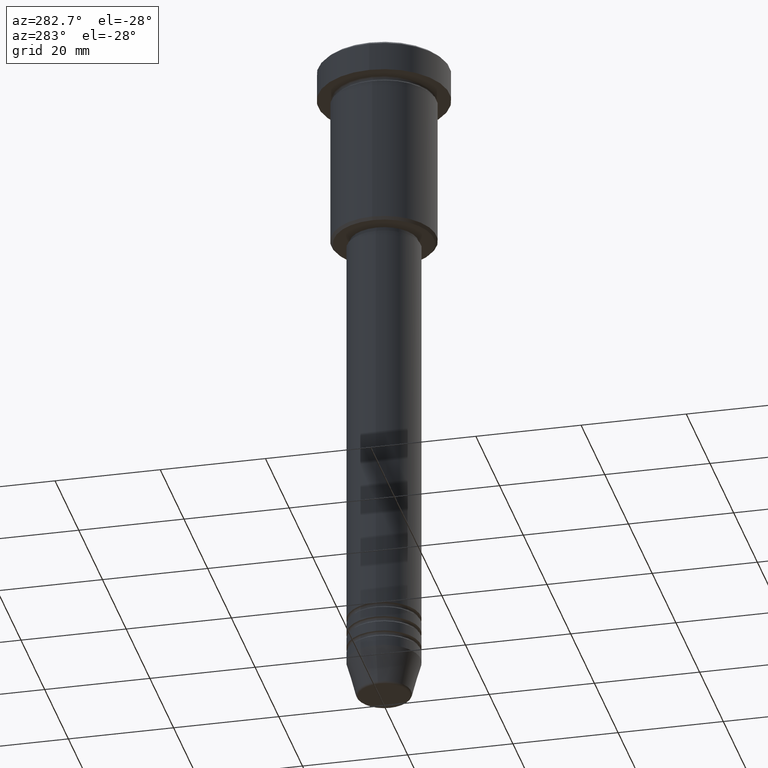
[diagram: clean part render]
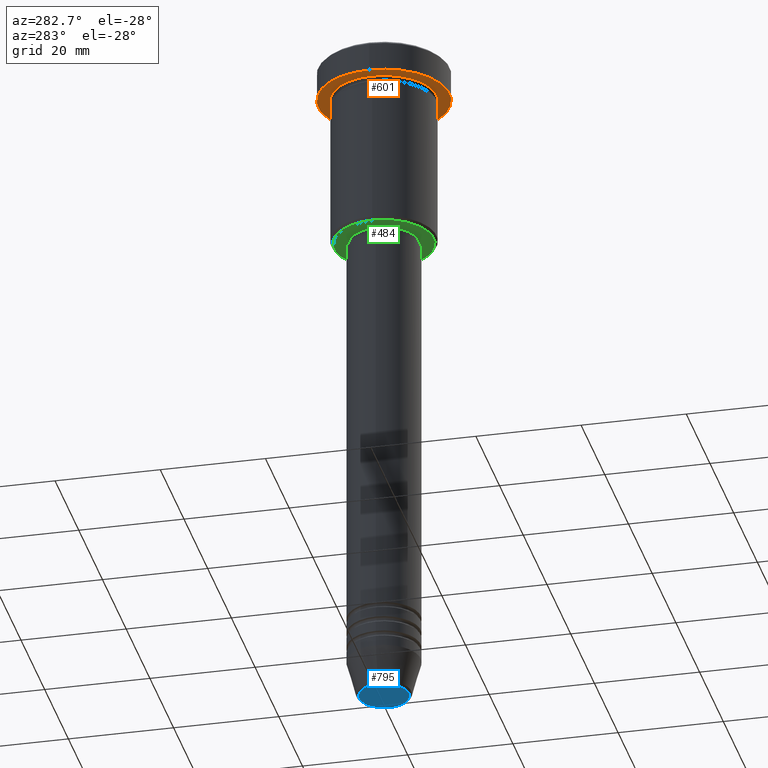
[diagram: same view with three faces highlighted in distinct colors, each labeled with its STEP entity id]
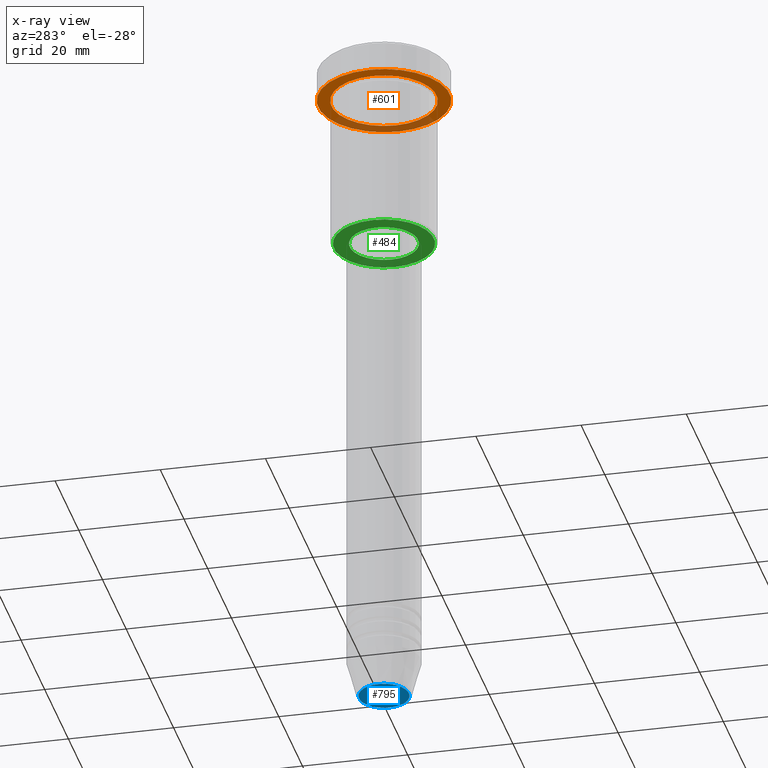
[diagram: x-ray of the same camera — body ghosted, the three highlighted faces saturated]
A machine part, auxiliary view with three faces highlighted in distinct colors.
The next image is the same camera in x-ray (body ghosted, the three faces saturated) — at least one of them is partly hidden behind the body in this view.
Their STEP definitions:

[orange] entity #601 — the highlighted planar face has unit normal (0, 0, -1).
#3 = CIRCLE ( 'NONE', #678, 12.50000000000000000 ) ;
#10 = CARTESIAN_POINT ( 'NONE',  ( 0.000000000000000000, 0.000000000000000000, -5.999999999999996447 ) ) ;
#13 = EDGE_LOOP ( 'NONE', ( #449, #93 ) ) ;
#35 = ORIENTED_EDGE ( 'NONE', *, *, #201, .T. ) ;
#53 = DIRECTION ( 'NONE',  ( 1.000000000000000000, 0.000000000000000000, 0.000000000000000000 ) ) ;
#66 = CARTESIAN_POINT ( 'NONE',  ( 0.000000000000000000, 0.000000000000000000, -5.999999999999996447 ) ) ;
#82 = EDGE_CURVE ( 'NONE', #419, #126, #373, .T. ) ;
#93 = ORIENTED_EDGE ( 'NONE', *, *, #937, .F. ) ;
#107 = DIRECTION ( 'NONE',  ( -1.000000000000000000, 0.000000000000000000, 0.000000000000000000 ) ) ;
#126 = VERTEX_POINT ( 'NONE', #240 ) ;
#140 = VERTEX_POINT ( 'NONE', #833 ) ;
#151 = CARTESIAN_POINT ( 'NONE',  ( 0.000000000000000000, 12.50000000000000000, -5.999999999999996447 ) ) ;
#155 = CIRCLE ( 'NONE', #728, 10.00000000000000000 ) ;
#180 = CARTESIAN_POINT ( 'NONE',  ( 0.000000000000000000, 0.000000000000000000, -5.999999999999996447 ) ) ;
#201 = EDGE_CURVE ( 'NONE', #140, #788, #505, .T. ) ;
#240 = CARTESIAN_POINT ( 'NONE',  ( -12.50000000000000000, 1.530808498934191521E-15, -5.999999999999996447 ) ) ;
#311 = AXIS2_PLACEMENT_3D ( 'NONE', #10, #662, #107 ) ;
#373 = CIRCLE ( 'NONE', #527, 12.50000000000000000 ) ;
#419 = VERTEX_POINT ( 'NONE', #1027 ) ;
#438 = DIRECTION ( 'NONE',  ( 1.000000000000000000, 0.000000000000000000, 0.000000000000000000 ) ) ;
#449 = ORIENTED_EDGE ( 'NONE', *, *, #82, .F. ) ;
#458 = AXIS2_PLACEMENT_3D ( 'NONE', #151, #519, #1171 ) ;
#483 = EDGE_LOOP ( 'NONE', ( #35, #696 ) ) ;
#505 = CIRCLE ( 'NONE', #311, 10.00000000000000000 ) ;
#519 = DIRECTION ( 'NONE',  ( 0.000000000000000000, 0.000000000000000000, -1.000000000000000000 ) ) ;
#527 = AXIS2_PLACEMENT_3D ( 'NONE', #902, #897, #438 ) ;
#601 = ADVANCED_FACE ( 'NONE', ( #1157, #896 ), #906, .T. ) ;
#662 = DIRECTION ( 'NONE',  ( -0.000000000000000000, -0.000000000000000000, 1.000000000000000000 ) ) ;
#678 = AXIS2_PLACEMENT_3D ( 'NONE', #66, #705, #53 ) ;
#696 = ORIENTED_EDGE ( 'NONE', *, *, #1149, .T. ) ;
#705 = DIRECTION ( 'NONE',  ( -0.000000000000000000, -0.000000000000000000, 1.000000000000000000 ) ) ;
#728 = AXIS2_PLACEMENT_3D ( 'NONE', #180, #995, #923 ) ;
#788 = VERTEX_POINT ( 'NONE', #1121 ) ;
#833 = CARTESIAN_POINT ( 'NONE',  ( -10.00000000000000000, 0.000000000000000000, -5.999999999999996447 ) ) ;
#896 = FACE_OUTER_BOUND ( 'NONE', #13, .T. ) ;
#897 = DIRECTION ( 'NONE',  ( -0.000000000000000000, -0.000000000000000000, 1.000000000000000000 ) ) ;
#902 = CARTESIAN_POINT ( 'NONE',  ( 0.000000000000000000, 0.000000000000000000, -5.999999999999996447 ) ) ;
#906 = PLANE ( 'NONE',  #458 ) ;
#923 = DIRECTION ( 'NONE',  ( -1.000000000000000000, 0.000000000000000000, 0.000000000000000000 ) ) ;
#937 = EDGE_CURVE ( 'NONE', #126, #419, #3, .T. ) ;
#995 = DIRECTION ( 'NONE',  ( -0.000000000000000000, -0.000000000000000000, 1.000000000000000000 ) ) ;
#1027 = CARTESIAN_POINT ( 'NONE',  ( 12.50000000000000000, 0.000000000000000000, -5.999999999999996447 ) ) ;
#1121 = CARTESIAN_POINT ( 'NONE',  ( 10.00000000000000000, 1.224646799147353256E-15, -5.999999999999996447 ) ) ;
#1149 = EDGE_CURVE ( 'NONE', #788, #140, #155, .T. ) ;
#1157 = FACE_BOUND ( 'NONE', #483, .T. ) ;
#1171 = DIRECTION ( 'NONE',  ( -1.000000000000000000, 0.000000000000000000, -0.000000000000000000 ) ) ;

[blue] entity #795 — the highlighted planar face has unit normal (0, -0, 1).
#136 = CARTESIAN_POINT ( 'NONE',  ( 4.740692158992654726, 0.000000000000000000, -131.0000000000000000 ) ) ;
#181 = DIRECTION ( 'NONE',  ( 0.000000000000000000, 0.000000000000000000, -1.000000000000000000 ) ) ;
#246 = EDGE_CURVE ( 'NONE', #300, #694, #1117, .T. ) ;
#300 = VERTEX_POINT ( 'NONE', #136 ) ;
#319 = EDGE_LOOP ( 'NONE', ( #370, #416 ) ) ;
#370 = ORIENTED_EDGE ( 'NONE', *, *, #246, .T. ) ;
#406 = FACE_OUTER_BOUND ( 'NONE', #319, .T. ) ;
#416 = ORIENTED_EDGE ( 'NONE', *, *, #609, .T. ) ;
#468 = DIRECTION ( 'NONE',  ( 1.000000000000000000, 0.000000000000000000, 0.000000000000000000 ) ) ;
#534 = CARTESIAN_POINT ( 'NONE',  ( -4.740692158992654726, 6.101402971097978774E-16, -131.0000000000000000 ) ) ;
#555 = AXIS2_PLACEMENT_3D ( 'NONE', #681, #791, #778 ) ;
#574 = AXIS2_PLACEMENT_3D ( 'NONE', #820, #181, #468 ) ;
#604 = AXIS2_PLACEMENT_3D ( 'NONE', #918, #922, #839 ) ;
#609 = EDGE_CURVE ( 'NONE', #694, #300, #722, .T. ) ;
#681 = CARTESIAN_POINT ( 'NONE',  ( 0.000000000000000000, 0.000000000000000000, -131.0000000000000000 ) ) ;
#694 = VERTEX_POINT ( 'NONE', #534 ) ;
#722 = CIRCLE ( 'NONE', #574, 4.740692158992654726 ) ;
#778 = DIRECTION ( 'NONE',  ( 1.000000000000000000, 0.000000000000000000, 0.000000000000000000 ) ) ;
#791 = DIRECTION ( 'NONE',  ( 0.000000000000000000, -0.000000000000000000, 1.000000000000000000 ) ) ;
#795 = ADVANCED_FACE ( 'NONE', ( #406 ), #957, .F. ) ;
#820 = CARTESIAN_POINT ( 'NONE',  ( 0.000000000000000000, 0.000000000000000000, -131.0000000000000000 ) ) ;
#839 = DIRECTION ( 'NONE',  ( 1.000000000000000000, 0.000000000000000000, 0.000000000000000000 ) ) ;
#918 = CARTESIAN_POINT ( 'NONE',  ( 0.000000000000000000, 0.000000000000000000, -131.0000000000000000 ) ) ;
#922 = DIRECTION ( 'NONE',  ( 0.000000000000000000, 0.000000000000000000, -1.000000000000000000 ) ) ;
#957 = PLANE ( 'NONE',  #555 ) ;
#1117 = CIRCLE ( 'NONE', #604, 4.740692158992654726 ) ;

[green] entity #484 — the highlighted planar face has unit normal (0, 0, -1).
#39 = CIRCLE ( 'NONE', #1077, 9.499999999999980460 ) ;
#45 = VERTEX_POINT ( 'NONE', #822 ) ;
#50 = EDGE_CURVE ( 'NONE', #45, #916, #665, .T. ) ;
#69 = FACE_BOUND ( 'NONE', #644, .T. ) ;
#73 = CARTESIAN_POINT ( 'NONE',  ( 0.000000000000000000, 0.000000000000000000, -35.99999999999999289 ) ) ;
#103 = DIRECTION ( 'NONE',  ( -1.000000000000000000, 0.000000000000000000, 0.000000000000000000 ) ) ;
#147 = DIRECTION ( 'NONE',  ( 0.000000000000000000, 0.000000000000000000, -1.000000000000000000 ) ) ;
#159 = PLANE ( 'NONE',  #553 ) ;
#226 = VERTEX_POINT ( 'NONE', #276 ) ;
#260 = EDGE_CURVE ( 'NONE', #226, #884, #544, .T. ) ;
#262 = DIRECTION ( 'NONE',  ( 1.000000000000000000, 0.000000000000000000, 0.000000000000000000 ) ) ;
#268 = CIRCLE ( 'NONE', #942, 6.500000000000000000 ) ;
#276 = CARTESIAN_POINT ( 'NONE',  ( -9.499999999999980460, 1.194030629168668286E-15, -35.99999999999999289 ) ) ;
#302 = ORIENTED_EDGE ( 'NONE', *, *, #260, .T. ) ;
#322 = DIRECTION ( 'NONE',  ( -1.000000000000000000, 0.000000000000000000, -0.000000000000000000 ) ) ;
#358 = EDGE_LOOP ( 'NONE', ( #806, #302 ) ) ;
#396 = ORIENTED_EDGE ( 'NONE', *, *, #50, .T. ) ;
#484 = ADVANCED_FACE ( 'NONE', ( #632, #69 ), #159, .T. ) ;
#494 = EDGE_CURVE ( 'NONE', #884, #226, #39, .T. ) ;
#512 = DIRECTION ( 'NONE',  ( -1.000000000000000000, 0.000000000000000000, 0.000000000000000000 ) ) ;
#544 = CIRCLE ( 'NONE', #1007, 9.499999999999980460 ) ;
#552 = CARTESIAN_POINT ( 'NONE',  ( 0.000000000000000000, 0.000000000000000000, -35.99999999999999289 ) ) ;
#553 = AXIS2_PLACEMENT_3D ( 'NONE', #974, #147, #322 ) ;
#632 = FACE_OUTER_BOUND ( 'NONE', #358, .T. ) ;
#644 = EDGE_LOOP ( 'NONE', ( #1179, #396 ) ) ;
#665 = CIRCLE ( 'NONE', #690, 6.500000000000000000 ) ;
#690 = AXIS2_PLACEMENT_3D ( 'NONE', #73, #716, #262 ) ;
#716 = DIRECTION ( 'NONE',  ( -0.000000000000000000, -0.000000000000000000, 1.000000000000000000 ) ) ;
#717 = CARTESIAN_POINT ( 'NONE',  ( 0.000000000000000000, 0.000000000000000000, -35.99999999999999289 ) ) ;
#794 = CARTESIAN_POINT ( 'NONE',  ( 6.500000000000000000, 0.000000000000000000, -35.99999999999999289 ) ) ;
#806 = ORIENTED_EDGE ( 'NONE', *, *, #494, .T. ) ;
#822 = CARTESIAN_POINT ( 'NONE',  ( -6.500000000000000000, 7.960204194457795477E-16, -35.99999999999999289 ) ) ;
#881 = DIRECTION ( 'NONE',  ( -0.000000000000000000, -0.000000000000000000, 1.000000000000000000 ) ) ;
#884 = VERTEX_POINT ( 'NONE', #978 ) ;
#899 = EDGE_CURVE ( 'NONE', #916, #45, #268, .T. ) ;
#916 = VERTEX_POINT ( 'NONE', #794 ) ;
#927 = DIRECTION ( 'NONE',  ( 0.000000000000000000, 0.000000000000000000, -1.000000000000000000 ) ) ;
#942 = AXIS2_PLACEMENT_3D ( 'NONE', #717, #881, #1053 ) ;
#974 = CARTESIAN_POINT ( 'NONE',  ( 0.000000000000000000, 10.00000000000000000, -35.99999999999999289 ) ) ;
#978 = CARTESIAN_POINT ( 'NONE',  ( 9.499999999999980460, 0.000000000000000000, -35.99999999999999289 ) ) ;
#1007 = AXIS2_PLACEMENT_3D ( 'NONE', #552, #927, #103 ) ;
#1053 = DIRECTION ( 'NONE',  ( 1.000000000000000000, 0.000000000000000000, 0.000000000000000000 ) ) ;
#1061 = CARTESIAN_POINT ( 'NONE',  ( 0.000000000000000000, 0.000000000000000000, -35.99999999999999289 ) ) ;
#1077 = AXIS2_PLACEMENT_3D ( 'NONE', #1061, #1086, #512 ) ;
#1086 = DIRECTION ( 'NONE',  ( 0.000000000000000000, 0.000000000000000000, -1.000000000000000000 ) ) ;
#1179 = ORIENTED_EDGE ( 'NONE', *, *, #899, .T. ) ;